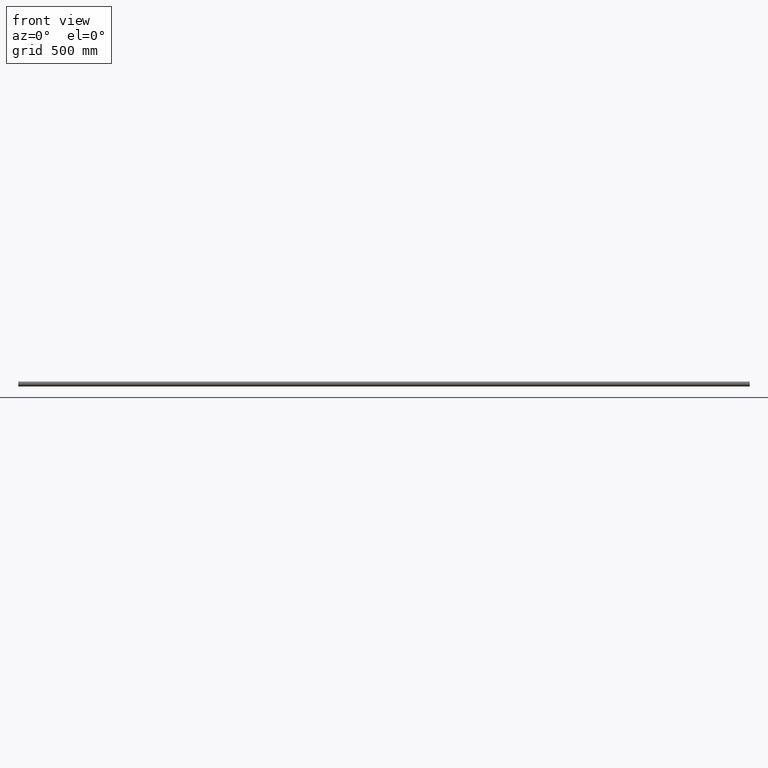
[diagram: clean part render]
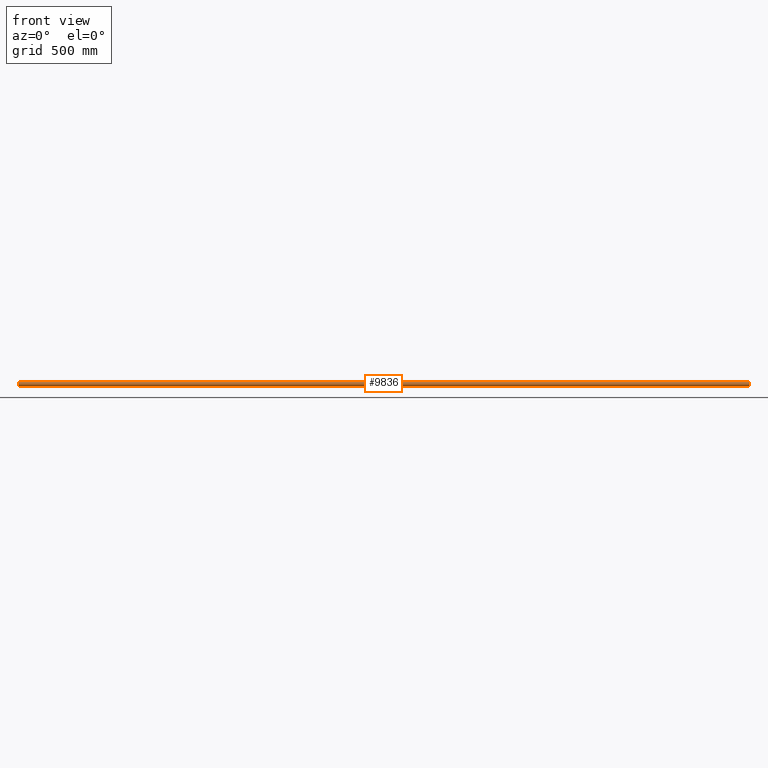
[diagram: same view with one face highlighted and labeled with its STEP entity id]
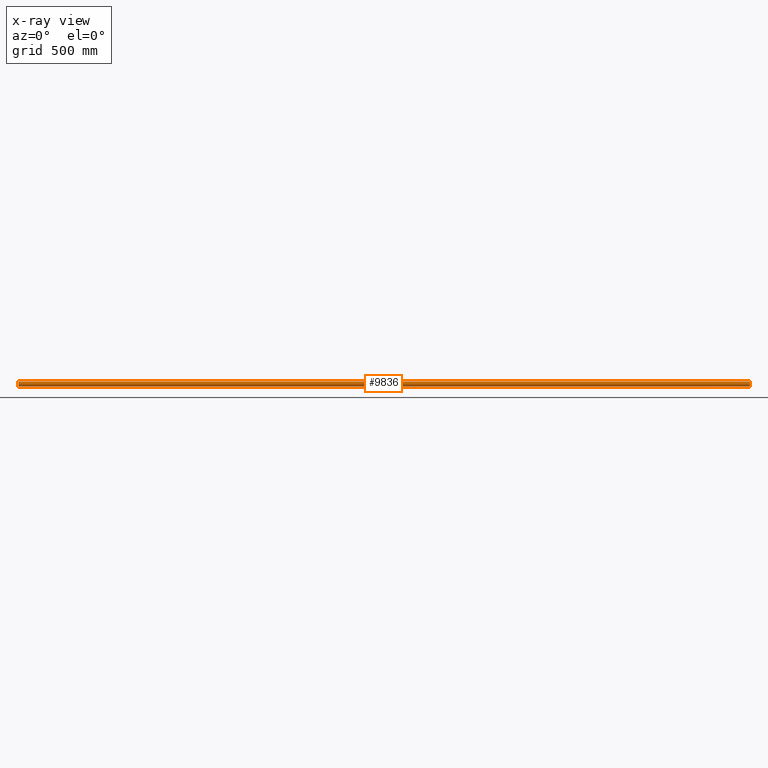
[diagram: x-ray of the same camera — body ghosted, the highlighted face saturated]
A machine part, front view. The second image highlights one B-rep face of the part: STEP entity #9836.
The next image is the same camera in x-ray: the body ghosted, the highlighted face saturated — about 0% of this face is hidden behind the body in this view.
In plain terms, the highlighted cylindrical surface (edge-blend (fillet) strip) has radius 12.5 mm, axis along (-1, -0, -0).
Its self-contained STEP definition (entity closure, byte-faithful):
#140 = EDGE_LOOP ( 'NONE', ( #14243, #6343, #13578, #7817, #14634, #5716, #1511, #9552, #3096, #8540, #4317, #8113, #2882, #7874 ) ) ;
#170 = B_SPLINE_CURVE_WITH_KNOTS ( 'NONE', 3,
 ( #13951, #11385, #7433, #7370, #4948, #16508, #8855, #11271, #13997, #13890, #10163, #12634, #8732, #11329, #6189, #4877, #15276, #6240, #7547, #1063, #3819, #11503, #11554, #12859, #6362, #15440, #8956, #5109, #12799, #7658, #3773, #16729 ),
 .UNSPECIFIED., .F., .F.,
 ( 4, 2, 2, 2, 2, 2, 2, 2, 2, 2, 2, 2, 2, 2, 2, 4 ),
 ( 1.197015388918840900E-017, 0.0006675304755107222200, 0.001335060951021432500, 0.002002591426532143100, 0.002670121902042853300, 0.003337652377553563000, 0.004005182853064274100, 0.004672713328574984300, 0.005340243804085694500, 0.006007774279596404600, 0.006675304755107113900, 0.008010365706128837900, 0.008677896181639699000, 0.009345426657150558400, 0.01001295713266142100, 0.01068048760817228200 ),
 .UNSPECIFIED. ) ;
#352 = CARTESIAN_POINT ( 'NONE',  ( -1627.909587459076200, -2.718083123427898200, -12.20511272832639400 ) ) ;
#368 = CARTESIAN_POINT ( 'NONE',  ( -814.5519930857738000, -3.377710602246517100, -12.03507891894724400 ) ) ;
#411 = CARTESIAN_POINT ( 'NONE',  ( -1633.400000000000100, -9.932824226667062300E-015, -12.50000000000000000 ) ) ;
#419 = LINE ( 'NONE', #11304, #5130 ) ;
#431 = CARTESIAN_POINT ( 'NONE',  ( -818.3777329974520900, -0.4476042234037525000, -12.49389134214153400 ) ) ;
#473 = CARTESIAN_POINT ( 'NONE',  ( -1633.400000000000100, -0.2257922536967062200, -12.50000000000000000 ) ) ;
#496 = CARTESIAN_POINT ( 'NONE',  ( -812.4379886708798000, -2.246229744202055100, -12.29756642919714700 ) ) ;
#502 = CARTESIAN_POINT ( 'NONE',  ( -2.247283181778617000, -2.560938656392451200, -12.23588396395594200 ) ) ;
#550 = CARTESIAN_POINT ( 'NONE',  ( -818.0536700109805700, -1.511526726006549000, -12.40999792042050500 ) ) ;
#554 = CARTESIAN_POINT ( 'NONE',  ( 1.097439066445784300, -3.225774224939500300, -12.07692960344454400 ) ) ;
#610 = CARTESIAN_POINT ( 'NONE',  ( -1.100606476932582500, -3.224536294380879700, -12.07725403179794600 ) ) ;
#758 = VECTOR ( 'NONE', #12158, 1000.000000000000000 ) ;
#837 = CARTESIAN_POINT ( 'NONE',  ( 1633.377728582763900, -0.4482571319650909300, -12.49388896063694400 ) ) ;
#842 = DIRECTION ( 'NONE',  ( -1.000000000000000000, -0.0000000000000000000, -0.0000000000000000000 ) ) ;
#863 = CIRCLE ( 'NONE', #4267, 12.50000000000000000 ) ;
#992 = VECTOR ( 'NONE', #8116, 1000.000000000000000 ) ;
#1020 = DIRECTION ( 'NONE',  ( 0.0000000000000000000, 0.0000000000000000000, -1.000000000000000000 ) ) ;
#1063 = CARTESIAN_POINT ( 'NONE',  ( 815.8849586188831600, -3.290362799234757100, -12.05925230465093600 ) ) ;
#1075 = CARTESIAN_POINT ( 'NONE',  ( 1633.400000000000100, 1.530817149939125600E-015, -12.50000000000000000 ) ) ;
#1098 = CARTESIAN_POINT ( 'NONE',  ( -811.6000000000001400, 1.530817147818667500E-015, -12.50000000000000000 ) ) ;
#1328 = EDGE_CURVE ( 'NONE', #8756, #3511, #16482, .T. ) ;
#1506 = EDGE_CURVE ( 'NONE', #10337, #14493, #16828, .T. ) ;
#1511 = ORIENTED_EDGE ( 'NONE', *, *, #15011, .F. ) ;
#1556 = CARTESIAN_POINT ( 'NONE',  ( -1627.437988670878900, -2.246229744202111100, -12.29756642919713100 ) ) ;
#1622 = CARTESIAN_POINT ( 'NONE',  ( -812.9095874590755100, -2.718083123427828900, -12.20511272832640700 ) ) ;
#1672 = CARTESIAN_POINT ( 'NONE',  ( -1627.051946665332300, -1.708183272649724100, -12.38412960736628300 ) ) ;
#1690 = CARTESIAN_POINT ( 'NONE',  ( -811.6222714172365600, -0.4482571319650465700, -12.49388896063693900 ) ) ;
#1696 = CARTESIAN_POINT ( 'NONE',  ( -3.053670010980488400, -1.511526726006567000, -12.40999792042050700 ) ) ;
#1738 = CARTESIAN_POINT ( 'NONE',  ( 1800.000000000000000, 1.530808498934191500E-015, -12.50000000000000000 ) ) ;
#1741 = CARTESIAN_POINT ( 'NONE',  ( -815.2244276377462000, -3.399902734060280500, -12.02874313505274300 ) ) ;
#1747 = CARTESIAN_POINT ( 'NONE',  ( 1800.000000000000000, 1.530808498934191500E-015, -12.50000000000000000 ) ) ;
#1774 = CARTESIAN_POINT ( 'NONE',  ( 1626.600000000000400, -0.2257922536967062200, -12.50000000000000000 ) ) ;
#1780 = CARTESIAN_POINT ( 'NONE',  ( -1626.710053940875200, -0.8867016201782891300, -12.47044329820942800 ) ) ;
#1794 = CARTESIAN_POINT ( 'NONE',  ( -817.0767785535758800, -2.701278004671885800, -12.20530089315861700 ) ) ;
#1824 = CARTESIAN_POINT ( 'NONE',  ( 1626.946329989019200, -1.511526726006589200, -12.40999792042049600 ) ) ;
#1853 = CARTESIAN_POINT ( 'NONE',  ( -816.5092891430319900, -3.054671048340733600, -12.12133177702797600 ) ) ;
#1859 = CARTESIAN_POINT ( 'NONE',  ( 0.2214708092432761400, -3.400096623084132700, -12.02868833097944200 ) ) ;
#2262 = CARTESIAN_POINT ( 'NONE',  ( 1628.899393523067100, -3.224536294380904600, -12.07725403179793100 ) ) ;
#2327 = CARTESIAN_POINT ( 'NONE',  ( 1631.716916083619700, -2.968529363370432200, -12.14369076542070600 ) ) ;
#2335 = CARTESIAN_POINT ( 'NONE',  ( 1800.000000000000000, 0.0000000000000000000, 0.0000000000000000000 ) ) ;
#2477 = FACE_OUTER_BOUND ( 'NONE', #140, .T. ) ;
#2695 = LINE ( 'NONE', #14738, #15101 ) ;
#2882 = ORIENTED_EDGE ( 'NONE', *, *, #8918, .F. ) ;
#2887 = VECTOR ( 'NONE', #842, 1000.000000000000000 ) ;
#2965 = CARTESIAN_POINT ( 'NONE',  ( -811.9451166598306600, -1.508976641703934500, -12.41029900232306300 ) ) ;
#2971 = CARTESIAN_POINT ( 'NONE',  ( -2.949123524426435800, -1.706430297025202800, -12.38438124661081100 ) ) ;
#2999 = CARTESIAN_POINT ( 'NONE',  ( -1633.377732997452500, -0.4476042234037826400, -12.49389134214153100 ) ) ;
#3096 = ORIENTED_EDGE ( 'NONE', *, *, #14148, .F. ) ;
#3138 = CARTESIAN_POINT ( 'NONE',  ( -2.559440054320827300, -2.248989797497623400, -12.29704468854004800 ) ) ;
#3163 = CARTESIAN_POINT ( 'NONE',  ( 1627.440559945679100, -2.248989797497722900, -12.29704468854002600 ) ) ;
#3190 = CARTESIAN_POINT ( 'NONE',  ( -813.2830839163810900, -2.968529363370429100, -12.14369076542070200 ) ) ;
#3194 = CARTESIAN_POINT ( 'NONE',  ( -3.399999999999987900, -0.2257922536967011100, -12.50000000000000200 ) ) ;
#3337 = DIRECTION ( 'NONE',  ( 0.0000000000000000000, 0.0000000000000000000, 1.000000000000000000 ) ) ;
#3391 = DIRECTION ( 'NONE',  ( -1.000000000000000000, -0.0000000000000000000, -0.0000000000000000000 ) ) ;
#3511 = VERTEX_POINT ( 'NONE', #7296 ) ;
#3608 = CARTESIAN_POINT ( 'NONE',  ( 1632.090412540924900, -2.718083123427898200, -12.20511272832639400 ) ) ;
#3663 = CARTESIAN_POINT ( 'NONE',  ( 1633.399999999999900, -0.2225510969395967400, -12.50000000000000000 ) ) ;
#3699 = CARTESIAN_POINT ( 'NONE',  ( -1800.000000000000000, 1.530808498934191500E-015, -12.50000000000000000 ) ) ;
#3720 = CARTESIAN_POINT ( 'NONE',  ( 1633.225220202861500, -1.098761744103553800, -12.45332302889326900 ) ) ;
#3773 = CARTESIAN_POINT ( 'NONE',  ( 818.4000000000002000, -0.2225510969395910800, -12.49999999999999800 ) ) ;
#3819 = CARTESIAN_POINT ( 'NONE',  ( 816.0974390664458700, -3.225774224939494900, -12.07692960344454000 ) ) ;
#4150 = AXIS2_PLACEMENT_3D ( 'NONE', #16841, #12874, #9081 ) ;
#4169 = EDGE_CURVE ( 'NONE', #14978, #3511, #11840, .T. ) ;
#4200 = CARTESIAN_POINT ( 'NONE',  ( -1632.247283181778400, -2.560938656392545800, -12.23588396395591700 ) ) ;
#4267 = AXIS2_PLACEMENT_3D ( 'NONE', #2335, #8820, #1020 ) ;
#4268 = CARTESIAN_POINT ( 'NONE',  ( -811.6000000000004800, -0.2225510969395918800, -12.50000000000000400 ) ) ;
#4315 = CARTESIAN_POINT ( 'NONE',  ( -1626.600000000000100, 1.530817149939125600E-015, -12.50000000000000000 ) ) ;
#4317 = ORIENTED_EDGE ( 'NONE', *, *, #8505, .F. ) ;
#4370 = CARTESIAN_POINT ( 'NONE',  ( -1629.778529190755800, -3.400096623084209600, -12.02868833097941500 ) ) ;
#4417 = CARTESIAN_POINT ( 'NONE',  ( 1626.709318878849400, -0.8836557597777843200, -12.47063843226398400 ) ) ;
#4444 = CARTESIAN_POINT ( 'NONE',  ( -1.705452640452510800, -2.949803944381699700, -12.14763061015491800 ) ) ;
#4500 = CARTESIAN_POINT ( 'NONE',  ( 2.701931776855448100, -2.075686207071247800, -12.32785800513539300 ) ) ;
#4693 = DIRECTION ( 'NONE',  ( -1.000000000000000000, -0.0000000000000000000, -0.0000000000000000000 ) ) ;
#4712 = AXIS2_PLACEMENT_3D ( 'NONE', #16025, #3391, #3337 ) ;
#4836 = CARTESIAN_POINT ( 'NONE',  ( 1627.752716818221400, -2.560938656392545800, -12.23588396395591700 ) ) ;
#4877 = CARTESIAN_POINT ( 'NONE',  ( 814.5542347389152800, -3.378089484675302700, -12.03497327294810600 ) ) ;
#4892 = CARTESIAN_POINT ( 'NONE',  ( 1630.221470809242900, -3.400096623084209600, -12.02868833097941500 ) ) ;
#4948 = CARTESIAN_POINT ( 'NONE',  ( 811.7752294936502700, -1.100213052444112300, -12.45320411249670800 ) ) ;
#5109 = CARTESIAN_POINT ( 'NONE',  ( 818.2252202028615800, -1.098761744103555300, -12.45332302889326900 ) ) ;
#5130 = VECTOR ( 'NONE', #4693, 1000.000000000000000 ) ;
#5387 = VERTEX_POINT ( 'NONE', #16691 ) ;
#5390 = CARTESIAN_POINT ( 'NONE',  ( 1800.000000000000000, 1.530808498934191500E-015, -12.50000000000000000 ) ) ;
#5432 = CARTESIAN_POINT ( 'NONE',  ( -1632.076778553575200, -2.701278004672001700, -12.20530089315858800 ) ) ;
#5443 = EDGE_CURVE ( 'NONE', #14692, #11366, #8801, .T. ) ;
#5570 = DIRECTION ( 'NONE',  ( -1.000000000000000000, -0.0000000000000000000, -0.0000000000000000000 ) ) ;
#5617 = CARTESIAN_POINT ( 'NONE',  ( -818.3999999999999800, -0.2257922536966988400, -12.50000000000000000 ) ) ;
#5668 = CARTESIAN_POINT ( 'NONE',  ( -818.2247705063501800, -1.100213052444112500, -12.45320411249671000 ) ) ;
#5673 = CARTESIAN_POINT ( 'NONE',  ( -3.224770506350070200, -1.100213052444122700, -12.45320411249670300 ) ) ;
#5699 = CARTESIAN_POINT ( 'NONE',  ( 1626.775229493649700, -1.100213052444138300, -12.45320411249670100 ) ) ;
#5716 = ORIENTED_EDGE ( 'NONE', *, *, #13581, .T. ) ;
#5724 = CARTESIAN_POINT ( 'NONE',  ( -817.7023275773591400, -2.075249282755359000, -12.32794158140094400 ) ) ;
#5790 = CARTESIAN_POINT ( 'NONE',  ( 3.289946059124464000, -0.8867016201782708100, -12.47044329820943200 ) ) ;
#6070 = CARTESIAN_POINT ( 'NONE',  ( 1629.114815645534000, -3.290386587176945500, -12.05924650854999100 ) ) ;
#6090 = CARTESIAN_POINT ( 'NONE',  ( -1633.400000000000100, -9.932824226667062300E-015, -12.50000000000000000 ) ) ;
#6189 = CARTESIAN_POINT ( 'NONE',  ( 814.1148156455341200, -3.290386587176774100, -12.05924650855003400 ) ) ;
#6240 = CARTESIAN_POINT ( 'NONE',  ( 815.2214708092433300, -3.400096623084107000, -12.02868833097944700 ) ) ;
#6253 = CARTESIAN_POINT ( 'NONE',  ( 1633.289946059124500, -0.8867016201782891300, -12.47044329820942800 ) ) ;
#6343 = ORIENTED_EDGE ( 'NONE', *, *, #7689, .F. ) ;
#6362 = CARTESIAN_POINT ( 'NONE',  ( 817.7019317768556400, -2.075686207071268300, -12.32785800513539000 ) ) ;
#6532 = LINE ( 'NONE', #1738, #992 ) ;
#6741 = CARTESIAN_POINT ( 'NONE',  ( -1631.100606476932600, -3.224536294380904600, -12.07725403179793100 ) ) ;
#6849 = VERTEX_POINT ( 'NONE', #15580 ) ;
#6855 = CARTESIAN_POINT ( 'NONE',  ( -1631.509289143032000, -3.054671048340755300, -12.12133177702796700 ) ) ;
#6924 = CARTESIAN_POINT ( 'NONE',  ( -813.9025609335544700, -3.225774224939495800, -12.07692960344454400 ) ) ;
#6930 = CARTESIAN_POINT ( 'NONE',  ( 1.716916083618982300, -2.968529363370417500, -12.14369076542070800 ) ) ;
#6969 = CARTESIAN_POINT ( 'NONE',  ( -1633.290681121150300, -0.8836557597777843200, -12.47063843226398400 ) ) ;
#6988 = CARTESIAN_POINT ( 'NONE',  ( -811.6000000000001400, 1.530817147818667500E-015, -12.50000000000000000 ) ) ;
#7040 = CARTESIAN_POINT ( 'NONE',  ( -818.2906811211505600, -0.8836557597777396900, -12.47063843226399100 ) ) ;
#7045 = CARTESIAN_POINT ( 'NONE',  ( 0.8849586188828703100, -3.290362799234785500, -12.05925230465093100 ) ) ;
#7096 = CARTESIAN_POINT ( 'NONE',  ( 3.399999999999987000, -0.2225510969395936800, -12.50000000000000000 ) ) ;
#7162 = CYLINDRICAL_SURFACE ( 'NONE', #4712, 12.50000000000000000 ) ;
#7296 = CARTESIAN_POINT ( 'NONE',  ( 1633.400000000000100, 1.530817149939125600E-015, -12.50000000000000000 ) ) ;
#7327 = CARTESIAN_POINT ( 'NONE',  ( 1800.000000000000000, 1.530808498934191500E-015, -12.50000000000000000 ) ) ;
#7370 = CARTESIAN_POINT ( 'NONE',  ( 811.7093188788494400, -0.8836557597777396900, -12.47063843226399300 ) ) ;
#7433 = CARTESIAN_POINT ( 'NONE',  ( 811.6222670025481400, -0.4476042234037524400, -12.49389134214153300 ) ) ;
#7503 = CARTESIAN_POINT ( 'NONE',  ( 1633.054883340169900, -1.508976641703940700, -12.41029900232306300 ) ) ;
#7547 = CARTESIAN_POINT ( 'NONE',  ( 815.4480069142265400, -3.377710602246517100, -12.03507891894724400 ) ) ;
#7658 = CARTESIAN_POINT ( 'NONE',  ( 818.3777285827638900, -0.4482571319650472400, -12.49388896063694300 ) ) ;
#7689 = EDGE_CURVE ( 'NONE', #12844, #8756, #863, .T. ) ;
#7694 = VERTEX_POINT ( 'NONE', #12657 ) ;
#7817 = ORIENTED_EDGE ( 'NONE', *, *, #5443, .T. ) ;
#7874 = ORIENTED_EDGE ( 'NONE', *, *, #4169, .T. ) ;
#8113 = ORIENTED_EDGE ( 'NONE', *, *, #10460, .T. ) ;
#8116 = DIRECTION ( 'NONE',  ( -1.000000000000000000, -0.0000000000000000000, -0.0000000000000000000 ) ) ;
#8119 = CARTESIAN_POINT ( 'NONE',  ( -814.1150413811172900, -3.290362799234757900, -12.05925230465093800 ) ) ;
#8158 = CARTESIAN_POINT ( 'NONE',  ( -1628.283083916381400, -2.968529363370432200, -12.14369076542070600 ) ) ;
#8215 = CARTESIAN_POINT ( 'NONE',  ( 1626.600000000000100, -9.932824226667062300E-015, -12.50000000000000000 ) ) ;
#8220 = CARTESIAN_POINT ( 'NONE',  ( -1632.949123524426100, -1.706430297025295100, -12.38438124661079300 ) ) ;
#8269 = CARTESIAN_POINT ( 'NONE',  ( -1631.705452640452400, -2.949803944381774300, -12.14763061015489300 ) ) ;
#8285 = CARTESIAN_POINT ( 'NONE',  ( -817.2472831817787000, -2.560938656392413000, -12.23588396395595300 ) ) ;
#8290 = CARTESIAN_POINT ( 'NONE',  ( -3.377732997452060500, -0.4476042234037460000, -12.49389134214153100 ) ) ;
#8341 = CARTESIAN_POINT ( 'NONE',  ( -814.7785291907569000, -3.400096623084107900, -12.02868833097945100 ) ) ;
#8347 = CARTESIAN_POINT ( 'NONE',  ( 3.054883340169159300, -1.508976641703949000, -12.41029900232305900 ) ) ;
#8408 = CARTESIAN_POINT ( 'NONE',  ( -3.290681121150602600, -0.8836557597777386900, -12.47063843226399100 ) ) ;
#8505 = EDGE_CURVE ( 'NONE', #13818, #6849, #2695, .T. ) ;
#8540 = ORIENTED_EDGE ( 'NONE', *, *, #8943, .T. ) ;
#8732 = CARTESIAN_POINT ( 'NONE',  ( 813.4907108569682400, -3.054671048340733100, -12.12133177702797600 ) ) ;
#8745 = CARTESIAN_POINT ( 'NONE',  ( 1628.294547359547600, -2.949803944381774300, -12.14763061015489300 ) ) ;
#8756 = VERTEX_POINT ( 'NONE', #5390 ) ;
#8801 = CIRCLE ( 'NONE', #4150, 12.50000000000000000 ) ;
#8820 = DIRECTION ( 'NONE',  ( 1.000000000000000000, 0.0000000000000000000, 0.0000000000000000000 ) ) ;
#8855 = CARTESIAN_POINT ( 'NONE',  ( 812.0508764755738900, -1.706430297025199200, -12.38438124661081100 ) ) ;
#8864 = CARTESIAN_POINT ( 'NONE',  ( 1629.554234738914800, -3.378089484675443900, -12.03497327294806500 ) ) ;
#8918 = EDGE_CURVE ( 'NONE', #14978, #5387, #16711, .T. ) ;
#8943 = EDGE_CURVE ( 'NONE', #9972, #6849, #14246, .T. ) ;
#8956 = CARTESIAN_POINT ( 'NONE',  ( 818.0548833401693400, -1.508976641703934500, -12.41029900232306300 ) ) ;
#9081 = DIRECTION ( 'NONE',  ( 0.0000000000000000000, 0.0000000000000000000, -1.000000000000000000 ) ) ;
#9122 = EDGE_CURVE ( 'NONE', #12844, #14692, #419, .T. ) ;
#9416 = CARTESIAN_POINT ( 'NONE',  ( -1633.224770506349600, -1.100213052444138300, -12.45320411249670100 ) ) ;
#9466 = CARTESIAN_POINT ( 'NONE',  ( -1627.298068223145000, -2.075686207071323800, -12.32785800513537900 ) ) ;
#9483 = CARTESIAN_POINT ( 'NONE',  ( -812.2980682231447000, -2.075686207071267800, -12.32785800513538800 ) ) ;
#9552 = ORIENTED_EDGE ( 'NONE', *, *, #1506, .T. ) ;
#9568 = DIRECTION ( 'NONE',  ( -1.000000000000000000, -0.0000000000000000000, -0.0000000000000000000 ) ) ;
#9578 = CARTESIAN_POINT ( 'NONE',  ( -1630.885184354465500, -3.290386587176945500, -12.05924650854999100 ) ) ;
#9598 = CARTESIAN_POINT ( 'NONE',  ( -815.8851843544659900, -3.290386587176775000, -12.05924650855003800 ) ) ;
#9655 = CARTESIAN_POINT ( 'NONE',  ( -812.0519466653323700, -1.708183272649670800, -12.38412960736629000 ) ) ;
#9656 = CARTESIAN_POINT ( 'NONE',  ( -3.399999999999987900, -3.085611381634476200E-019, -12.50000000000000000 ) ) ;
#9661 = CARTESIAN_POINT ( 'NONE',  ( 3.225220202861458100, -1.098761744103564900, -12.45332302889326700 ) ) ;
#9691 = CARTESIAN_POINT ( 'NONE',  ( -818.3999999999999800, 1.240253457150525300E-014, -12.50000000000000000 ) ) ;
#9836 = ADVANCED_FACE ( 'NONE', ( #2477 ), #7162, .T. ) ;
#9972 = VERTEX_POINT ( 'NONE', #9656 ) ;
#10003 = CARTESIAN_POINT ( 'NONE',  ( 1630.448006914225700, -3.377710602246636600, -12.03507891894720800 ) ) ;
#10068 = CARTESIAN_POINT ( 'NONE',  ( 1629.775572362254000, -3.399902734060398200, -12.02874313505270900 ) ) ;
#10163 = CARTESIAN_POINT ( 'NONE',  ( 812.9232214464243500, -2.701278004671885800, -12.20530089315861700 ) ) ;
#10165 = CARTESIAN_POINT ( 'NONE',  ( 1800.000000000000000, 0.0000000000000000000, 12.50000000000000000 ) ) ;
#10336 = CARTESIAN_POINT ( 'NONE',  ( 1800.000000000000000, 1.530808498934191500E-015, -12.50000000000000000 ) ) ;
#10337 = VERTEX_POINT ( 'NONE', #9691 ) ;
#10389 = B_SPLINE_CURVE_WITH_KNOTS ( 'NONE', 3,
 ( #411, #473, #2999, #6969, #9416, #14516, #8220, #11901, #14629, #4200, #5432, #8269, #6855, #6741, #9578, #12116, #15825, #4370, #13407, #13244, #15943, #8158, #352, #1556, #9466, #1672, #10763, #12065, #1780, #10880, #10664, #4315 ),
 .UNSPECIFIED., .F., .F.,
 ( 4, 2, 2, 2, 2, 2, 2, 2, 2, 2, 2, 2, 2, 2, 2, 4 ),
 ( 9.720594809790037100E-018, 0.0006675304755108549200, 0.001335060951021700100, 0.002002591426532545100, 0.002670121902043390200, 0.003337652377554235300, 0.004005182853065080700, 0.004672713328575925400, 0.005340243804086770900, 0.006007774279597616300, 0.006675304755108461000, 0.008010365706129545700, 0.008677896181640320000, 0.009345426657151094400, 0.01001295713266186900, 0.01068048760817264100 ),
 .UNSPECIFIED. ) ;
#10460 = EDGE_CURVE ( 'NONE', #13818, #5387, #170, .T. ) ;
#10664 = CARTESIAN_POINT ( 'NONE',  ( -1626.600000000000400, -0.2225510969395967400, -12.50000000000000000 ) ) ;
#10763 = CARTESIAN_POINT ( 'NONE',  ( -1626.945116659831200, -1.508976641703940700, -12.41029900232306300 ) ) ;
#10787 = CARTESIAN_POINT ( 'NONE',  ( -0.8851843544657876900, -3.290386587176837600, -12.05924650855002200 ) ) ;
#10847 = CARTESIAN_POINT ( 'NONE',  ( -811.7747797971385400, -1.098761744103554900, -12.45332302889326900 ) ) ;
#10873 = CARTESIAN_POINT ( 'NONE',  ( 1626.622267002547900, -0.4476042234037826400, -12.49389134214153100 ) ) ;
#10880 = CARTESIAN_POINT ( 'NONE',  ( -1626.622271417237000, -0.4482571319650909300, -12.49388896063694400 ) ) ;
#10904 = CARTESIAN_POINT ( 'NONE',  ( -2.076778553575692900, -2.701278004671923600, -12.20530089315860600 ) ) ;
#10927 = CARTESIAN_POINT ( 'NONE',  ( 1627.297672422640500, -2.075249282755465200, -12.32794158140092100 ) ) ;
#11271 = CARTESIAN_POINT ( 'NONE',  ( 812.2976724226413100, -2.075249282755358600, -12.32794158140094800 ) ) ;
#11304 = CARTESIAN_POINT ( 'NONE',  ( 1800.000000000000000, 0.0000000000000000000, 12.50000000000000000 ) ) ;
#11329 = CARTESIAN_POINT ( 'NONE',  ( 813.8993935230676000, -3.224536294380859300, -12.07725403179794700 ) ) ;
#11366 = VERTEX_POINT ( 'NONE', #3699 ) ;
#11385 = CARTESIAN_POINT ( 'NONE',  ( 811.6000000000002500, -0.2257922536966986700, -12.50000000000000000 ) ) ;
#11464 = CARTESIAN_POINT ( 'NONE',  ( 811.6000000000002500, 1.240253457150525300E-014, -12.50000000000000000 ) ) ;
#11503 = CARTESIAN_POINT ( 'NONE',  ( 816.7169160836190300, -2.968529363370429100, -12.14369076542070200 ) ) ;
#11537 = LINE ( 'NONE', #12541, #758 ) ;
#11554 = CARTESIAN_POINT ( 'NONE',  ( 817.0904125409244900, -2.718083123427828400, -12.20511272832640500 ) ) ;
#11830 = CARTESIAN_POINT ( 'NONE',  ( 1626.600000000000100, -9.932824226667062300E-015, -12.50000000000000000 ) ) ;
#11840 = B_SPLINE_CURVE_WITH_KNOTS ( 'NONE', 3,
 ( #8215, #1774, #10873, #4417, #5699, #1824, #14795, #10927, #3163, #4836, #15405, #8745, #16622, #2262, #6070, #8864, #10068, #4892, #10003, #12648, #16521, #2327, #3608, #14085, #15296, #15178, #7503, #3720, #6253, #837, #3663, #1075 ),
 .UNSPECIFIED., .F., .F.,
 ( 4, 2, 2, 2, 2, 2, 2, 2, 2, 2, 2, 2, 2, 2, 2, 4 ),
 ( 9.720594809790037100E-018, 0.0006675304755108549200, 0.001335060951021700100, 0.002002591426532545100, 0.002670121902043390200, 0.003337652377554235300, 0.004005182853065080700, 0.004672713328575925400, 0.005340243804086770900, 0.006007774279597616300, 0.006675304755108461000, 0.008010365706129545700, 0.008677896181640320000, 0.009345426657151094400, 0.01001295713266186900, 0.01068048760817264100 ),
 .UNSPECIFIED. ) ;
#11901 = CARTESIAN_POINT ( 'NONE',  ( -1632.702327577359000, -2.075249282755465200, -12.32794158140092100 ) ) ;
#12024 = CARTESIAN_POINT ( 'NONE',  ( -811.7100539408758100, -0.8867016201782437200, -12.47044329820943200 ) ) ;
#12065 = CARTESIAN_POINT ( 'NONE',  ( -1626.774779797138300, -1.098761744103553800, -12.45332302889326900 ) ) ;
#12087 = CARTESIAN_POINT ( 'NONE',  ( -0.4457652610848898400, -3.378089484675349800, -12.03497327294808800 ) ) ;
#12116 = CARTESIAN_POINT ( 'NONE',  ( -1630.445765261084500, -3.378089484675443900, -12.03497327294806500 ) ) ;
#12158 = DIRECTION ( 'NONE',  ( -1.000000000000000000, -0.0000000000000000000, -0.0000000000000000000 ) ) ;
#12184 = CARTESIAN_POINT ( 'NONE',  ( -818.3999999999999800, 1.240253457150525300E-014, -12.50000000000000000 ) ) ;
#12259 = CARTESIAN_POINT ( 'NONE',  ( -1.509289143032030800, -3.054671048340748700, -12.12133177702796900 ) ) ;
#12431 = VECTOR ( 'NONE', #5570, 1000.000000000000000 ) ;
#12541 = CARTESIAN_POINT ( 'NONE',  ( 1800.000000000000000, 1.530808498934191500E-015, -12.50000000000000000 ) ) ;
#12634 = CARTESIAN_POINT ( 'NONE',  ( 813.2945473595475500, -2.949803944381664200, -12.14763061015492900 ) ) ;
#12648 = CARTESIAN_POINT ( 'NONE',  ( 1630.884958618882100, -3.290362799234904000, -12.05925230465088800 ) ) ;
#12657 = CARTESIAN_POINT ( 'NONE',  ( -1626.600000000000100, 1.530817149939125600E-015, -12.50000000000000000 ) ) ;
#12799 = CARTESIAN_POINT ( 'NONE',  ( 818.2899460591243000, -0.8867016201782428300, -12.47044329820943000 ) ) ;
#12844 = VERTEX_POINT ( 'NONE', #10165 ) ;
#12859 = CARTESIAN_POINT ( 'NONE',  ( 817.5620113291203100, -2.246229744202054700, -12.29756642919714300 ) ) ;
#12874 = DIRECTION ( 'NONE',  ( 1.000000000000000000, 0.0000000000000000000, 0.0000000000000000000 ) ) ;
#12946 = VECTOR ( 'NONE', #16737, 1000.000000000000000 ) ;
#13244 = CARTESIAN_POINT ( 'NONE',  ( -1629.115041381117200, -3.290362799234904000, -12.05925230465088800 ) ) ;
#13407 = CARTESIAN_POINT ( 'NONE',  ( -1629.551993085773800, -3.377710602246636600, -12.03507891894720800 ) ) ;
#13485 = CARTESIAN_POINT ( 'NONE',  ( -816.1006064769326300, -3.224536294380859800, -12.07725403179795100 ) ) ;
#13489 = CARTESIAN_POINT ( 'NONE',  ( 0.4480069142262558800, -3.377710602246544200, -12.03507891894723500 ) ) ;
#13548 = CARTESIAN_POINT ( 'NONE',  ( 2.562011329120406100, -2.246229744202104900, -12.29756642919713400 ) ) ;
#13578 = ORIENTED_EDGE ( 'NONE', *, *, #9122, .T. ) ;
#13581 = EDGE_CURVE ( 'NONE', #13732, #7694, #10389, .T. ) ;
#13732 = VERTEX_POINT ( 'NONE', #6090 ) ;
#13818 = VERTEX_POINT ( 'NONE', #11464 ) ;
#13890 = CARTESIAN_POINT ( 'NONE',  ( 812.7527168182216400, -2.560938656392412100, -12.23588396395595300 ) ) ;
#13951 = CARTESIAN_POINT ( 'NONE',  ( 811.6000000000002500, 1.240253457150525300E-014, -12.50000000000000000 ) ) ;
#13997 = CARTESIAN_POINT ( 'NONE',  ( 812.4405599456791800, -2.248989797497584800, -12.29704468854005300 ) ) ;
#14085 = CARTESIAN_POINT ( 'NONE',  ( 1632.562011329120700, -2.246229744202111100, -12.29756642919713100 ) ) ;
#14148 = EDGE_CURVE ( 'NONE', #9972, #14493, #6532, .T. ) ;
#14187 = LINE ( 'NONE', #10336, #12946 ) ;
#14243 = ORIENTED_EDGE ( 'NONE', *, *, #1328, .F. ) ;
#14246 = B_SPLINE_CURVE_WITH_KNOTS ( 'NONE', 3,
 ( #14719, #3194, #8290, #8408, #5673, #1696, #2971, #16061, #3138, #502, #10904, #4444, #12259, #610, #10787, #12087, #14823, #1859, #13489, #7045, #554, #6930, #16126, #13548, #4500, #16009, #8347, #9661, #5790, #14891, #7096, #16174 ),
 .UNSPECIFIED., .F., .F.,
 ( 4, 2, 2, 2, 2, 2, 2, 2, 2, 2, 2, 2, 2, 2, 2, 4 ),
 ( 7.473672456940466300E-020, 0.0006675304755107752300, 0.001335060951021550200, 0.002002591426532325300, 0.002670121902043100100, 0.003337652377553874400, 0.004005182853064649700, 0.004672713328575424900, 0.005340243804086200100, 0.006007774279596974500, 0.006675304755107750600, 0.008010365706129299300, 0.008677896181640073700, 0.009345426657150846300, 0.01001295713266162100, 0.01068048760817239500 ),
 .UNSPECIFIED. ) ;
#14493 = VERTEX_POINT ( 'NONE', #1098 ) ;
#14496 = CARTESIAN_POINT ( 'NONE',  ( -1800.000000000000000, 0.0000000000000000000, 12.50000000000000000 ) ) ;
#14516 = CARTESIAN_POINT ( 'NONE',  ( -1633.053670010980600, -1.511526726006589200, -12.40999792042049600 ) ) ;
#14629 = CARTESIAN_POINT ( 'NONE',  ( -1632.559440054320500, -2.248989797497722900, -12.29704468854002600 ) ) ;
#14634 = ORIENTED_EDGE ( 'NONE', *, *, #15252, .F. ) ;
#14692 = VERTEX_POINT ( 'NONE', #14496 ) ;
#14719 = CARTESIAN_POINT ( 'NONE',  ( -3.399999999999987900, -3.085611381634476200E-019, -12.50000000000000000 ) ) ;
#14738 = CARTESIAN_POINT ( 'NONE',  ( 1800.000000000000000, 1.530808498934191500E-015, -12.50000000000000000 ) ) ;
#14795 = CARTESIAN_POINT ( 'NONE',  ( 1627.050876475573400, -1.706430297025295100, -12.38438124661079300 ) ) ;
#14819 = CARTESIAN_POINT ( 'NONE',  ( -815.4457652610850600, -3.378089484675303100, -12.03497327294810600 ) ) ;
#14823 = CARTESIAN_POINT ( 'NONE',  ( -0.2244276377459111500, -3.399902734060312100, -12.02874313505273700 ) ) ;
#14891 = CARTESIAN_POINT ( 'NONE',  ( 3.377728582763543000, -0.4482571319650707200, -12.49388896063694600 ) ) ;
#14978 = VERTEX_POINT ( 'NONE', #11830 ) ;
#15011 = EDGE_CURVE ( 'NONE', #10337, #7694, #11537, .T. ) ;
#15101 = VECTOR ( 'NONE', #9568, 1000.000000000000000 ) ;
#15178 = CARTESIAN_POINT ( 'NONE',  ( 1632.948053334668000, -1.708183272649724100, -12.38412960736628300 ) ) ;
#15252 = EDGE_CURVE ( 'NONE', #13732, #11366, #14187, .T. ) ;
#15276 = CARTESIAN_POINT ( 'NONE',  ( 814.7755723622542500, -3.399902734060280500, -12.02874313505274300 ) ) ;
#15296 = CARTESIAN_POINT ( 'NONE',  ( 1632.701931776855900, -2.075686207071323800, -12.32785800513537900 ) ) ;
#15405 = CARTESIAN_POINT ( 'NONE',  ( 1627.923221446424300, -2.701278004672001700, -12.20530089315858800 ) ) ;
#15440 = CARTESIAN_POINT ( 'NONE',  ( 817.9480533346679700, -1.708183272649670600, -12.38412960736629600 ) ) ;
#15580 = CARTESIAN_POINT ( 'NONE',  ( 3.399999999999987900, 1.530817148184698900E-015, -12.50000000000000000 ) ) ;
#15825 = CARTESIAN_POINT ( 'NONE',  ( -1630.224427637745700, -3.399902734060398200, -12.02874313505270900 ) ) ;
#15902 = CARTESIAN_POINT ( 'NONE',  ( -816.7054526404529000, -2.949803944381664600, -12.14763061015493100 ) ) ;
#15943 = CARTESIAN_POINT ( 'NONE',  ( -1628.902560933554500, -3.225774224939542500, -12.07692960344453300 ) ) ;
#15959 = CARTESIAN_POINT ( 'NONE',  ( -817.5594400543211600, -2.248989797497585200, -12.29704468854005500 ) ) ;
#16009 = CARTESIAN_POINT ( 'NONE',  ( 2.948053334667982000, -1.708183272649644200, -12.38412960736629700 ) ) ;
#16025 = CARTESIAN_POINT ( 'NONE',  ( 1800.000000000000000, 0.0000000000000000000, 0.0000000000000000000 ) ) ;
#16061 = CARTESIAN_POINT ( 'NONE',  ( -2.702327577358867700, -2.075249282755369200, -12.32794158140094100 ) ) ;
#16120 = CARTESIAN_POINT ( 'NONE',  ( -817.9491235244266800, -1.706430297025199700, -12.38438124661081300 ) ) ;
#16126 = CARTESIAN_POINT ( 'NONE',  ( 2.090412540924479600, -2.718083123427877300, -12.20511272832640000 ) ) ;
#16174 = CARTESIAN_POINT ( 'NONE',  ( 3.399999999999987900, 1.530817148184698900E-015, -12.50000000000000000 ) ) ;
#16482 = LINE ( 'NONE', #7327, #2887 ) ;
#16508 = CARTESIAN_POINT ( 'NONE',  ( 811.9463299890198900, -1.511526726006549200, -12.40999792042050500 ) ) ;
#16521 = CARTESIAN_POINT ( 'NONE',  ( 1631.097439066446000, -3.225774224939542500, -12.07692960344453300 ) ) ;
#16622 = CARTESIAN_POINT ( 'NONE',  ( 1628.490710856967600, -3.054671048340755300, -12.12133177702796700 ) ) ;
#16691 = CARTESIAN_POINT ( 'NONE',  ( 818.4000000000000900, 1.530817147818667500E-015, -12.50000000000000000 ) ) ;
#16711 = LINE ( 'NONE', #1747, #12431 ) ;
#16729 = CARTESIAN_POINT ( 'NONE',  ( 818.4000000000000900, 1.530817147818667500E-015, -12.50000000000000000 ) ) ;
#16737 = DIRECTION ( 'NONE',  ( -1.000000000000000000, -0.0000000000000000000, -0.0000000000000000000 ) ) ;
#16828 = B_SPLINE_CURVE_WITH_KNOTS ( 'NONE', 3,
 ( #12184, #5617, #431, #7040, #5668, #550, #16120, #5724, #15959, #8285, #1794, #15902, #1853, #13485, #9598, #14819, #1741, #8341, #368, #8119, #6924, #3190, #1622, #496, #9483, #9655, #2965, #10847, #12024, #1690, #4268, #6988 ),
 .UNSPECIFIED., .F., .F.,
 ( 4, 2, 2, 2, 2, 2, 2, 2, 2, 2, 2, 2, 2, 2, 2, 4 ),
 ( 1.197015388918840900E-017, 0.0006675304755108357300, 0.001335060951021659500, 0.002002591426532483600, 0.002670121902043307400, 0.003337652377554131200, 0.004005182853064955000, 0.004672713328575778800, 0.005340243804086602600, 0.006007774279597426400, 0.006675304755108250200, 0.008010365706129594200, 0.008677896181640266200, 0.009345426657150938300, 0.01001295713266161000, 0.01068048760817228200 ),
 .UNSPECIFIED. ) ;
#16841 = CARTESIAN_POINT ( 'NONE',  ( -1800.000000000000000, 0.0000000000000000000, 0.0000000000000000000 ) ) ;